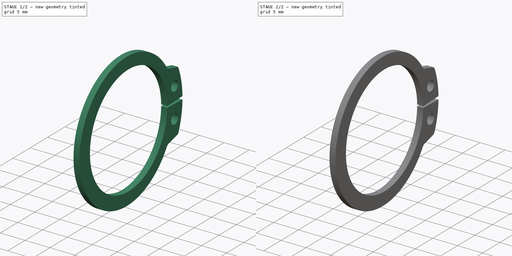
[diagram: build sequence overview — one tinted view per stage of 2, left to right]
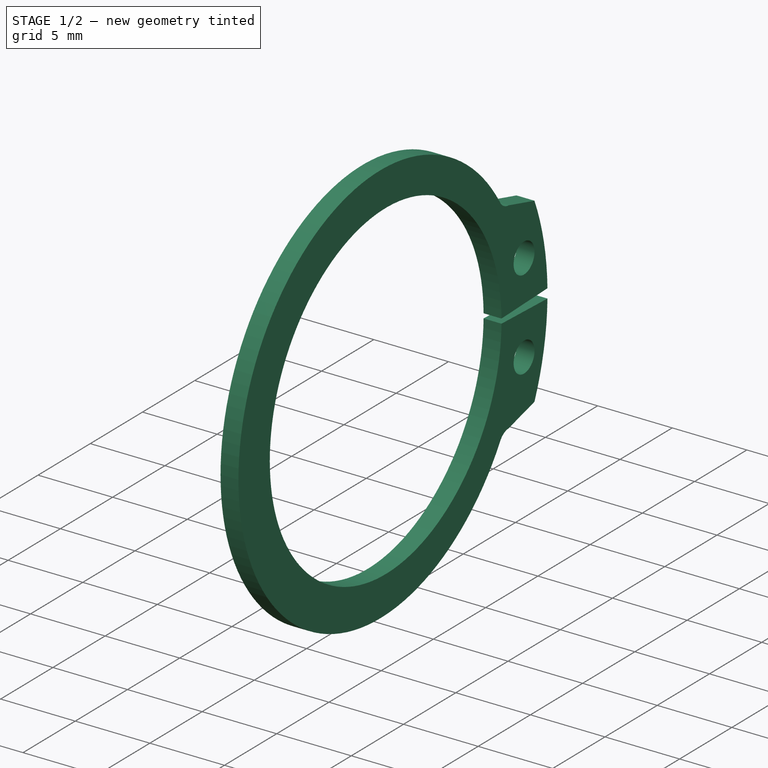
[diagram: stage 1 of 2 — iso view after this stage's code; geometry added in this stage tinted green]
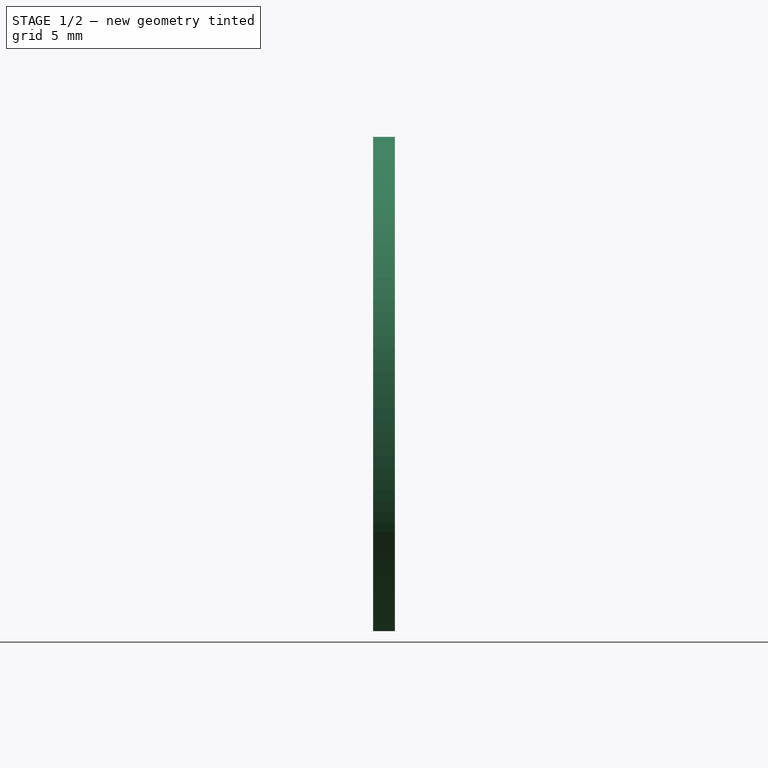
[diagram: stage 1 of 2 — front view after this stage's code; geometry added in this stage tinted green]
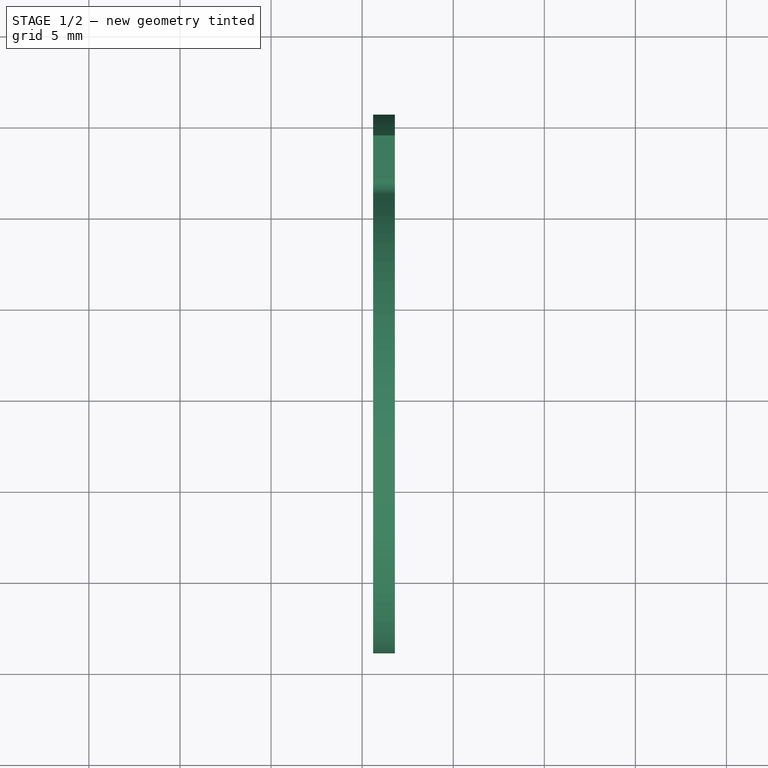
[diagram: stage 1 of 2 — top view after this stage's code; geometry added in this stage tinted green]
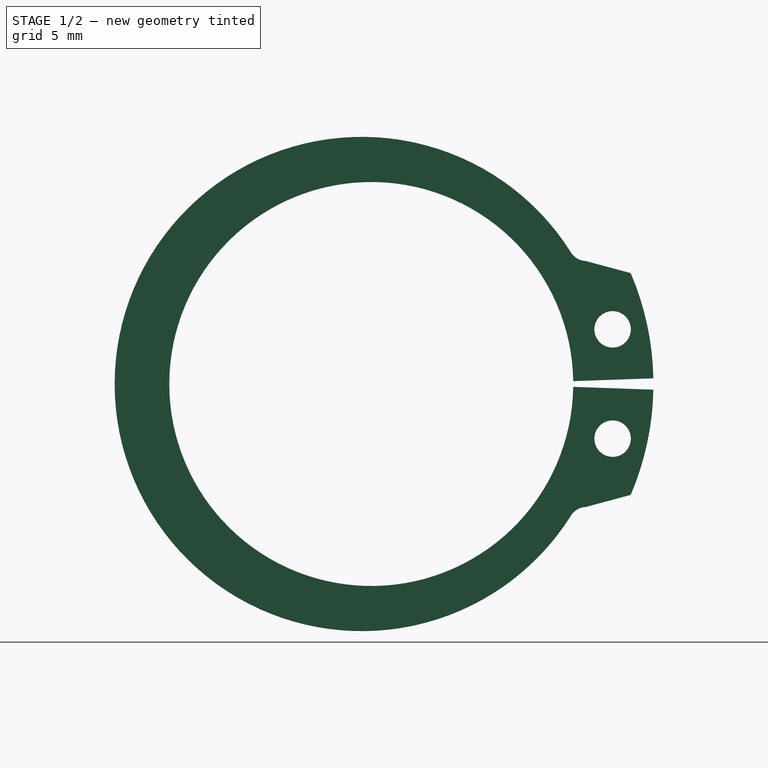
[diagram: stage 1 of 2 — right view after this stage's code; geometry added in this stage tinted green]
FCSTD DOCUMENT  (FreeCAD 0.15R4671 (Git))
Label: DIN471_CLASS_A_M24RetainingRings
License: CreativeCommons Attribution-ShareAlike
LicenseURL: http://creativecommons.org/licenses/by-sa/4.0/
objects: Sketcher::SketchObject×1, PartDesign::Pad×1, PartDesign::Mirrored×1, PartDesign::Fillet×1
note: 5 computed .brp shape members not serialized (recipe doc carries the construction recipe); baked Part::Feature solids carry a one-line shape summary decoded from their .brp

FEATURE [Sketcher::SketchObject] Sketch
  Placement = pos=(0.6,0,0) rot=(0.57735,0.57735,0.57735;2.0944rad)
  sketch-geometry (8):
    g0: Circle CenterX=13.25 CenterY=3 CenterZ=0 NormalX=0 NormalY=0 NormalZ=1 Radius=1
    g1: ArcOfCircle CenterX=0 CenterY=0 CenterZ=0 NormalX=0 NormalY=0 NormalZ=1 Radius=11.0887 StartAngle=0.0140751 EndAngle=3.14159
    g2: ArcOfCircle CenterX=0 CenterY=0 CenterZ=0 NormalX=0 NormalY=0 NormalZ=1 Radius=15.4907 StartAngle=0.0201516 EndAngle=0.403988
    g3: LineSegment StartX=11.0876 StartY=0.156069 StartZ=0 EndX=15.4876 EndY=0.312141 EndZ=0
    g4: ArcOfCircle CenterX=-0.520571 CenterY=0 CenterZ=0 NormalX=0 NormalY=0 NormalZ=1 Radius=13.5681 StartAngle=0.56552 EndAngle=3.14159
    g5: LineSegment StartX=-14.0887 StartY=0 StartZ=0 EndX=-11.0887 EndY=0 EndZ=0
    g6: LineSegment StartX=11.7665 StartY=6.7542 StartZ=0 EndX=14.2437 EndY=6.08922 EndZ=0
    g7: ArcOfCircle CenterX=11.8109 CenterY=7.75321 CenterZ=0 NormalX=0 NormalY=0 NormalZ=1 Radius=1 StartAngle=3.64532 EndAngle=4.66796
  constraints (26):
    c: Radius(g0) = 1
    c: DistanceY(g-1,g0) = 3
    c: DistanceX(g-1,g0) = 13.25
    c: Coincident(g1,g-1)
    c: PointOnObject(g1,g-1)
    c: Coincident(g2,g-1)
    c: Coincident(g3,g1)
    c: Coincident(g3,g2)
    c: DistanceX(g3) = 4.4
    c: Radius(g2) = 15.4907
    c: DistanceY(g-1,g1) = 0.156069
    c: DistanceY(g-1,g2) = 0.312141
    c: PointOnObject(g4,g-1)
    c: PointOnObject(g4,g-1)
    c: Coincident(g5,g4)
    c: Coincident(g5,g1)
    c: DistanceX(g5) = 3
    c: Coincident(g6,g2)
    c: Coincident(g7,g4)
    c: Coincident(g7,g6)
    c: Radius(g7) = 1
    c: DistanceX(g6) = 2.47723
    c: DistanceY(g-1,g2) = 6.08922
    c: DistanceX(g-1,g4) = 10.9351
    c: DistanceY(g-1,g4) = 7.27052
    c: DistanceY(g-1,g6) = 6.7542
FEATURE [PartDesign::Pad] Pad
  Length = 1.2
  Length2 = 100
  Placement = pos=(0.6,0,0) rot=(0.57735,0.57735,0.57735;2.0944rad)
  Sketch = -> Sketch
  Type = 0
FEATURE [PartDesign::Mirrored] Mirrored
  MirrorPlane = -> Sketch [H_Axis]
  Originals = -> [Pad]
  Placement = pos=(0.6,0,0) rot=(0.57735,0.57735,0.57735;2.0944rad)
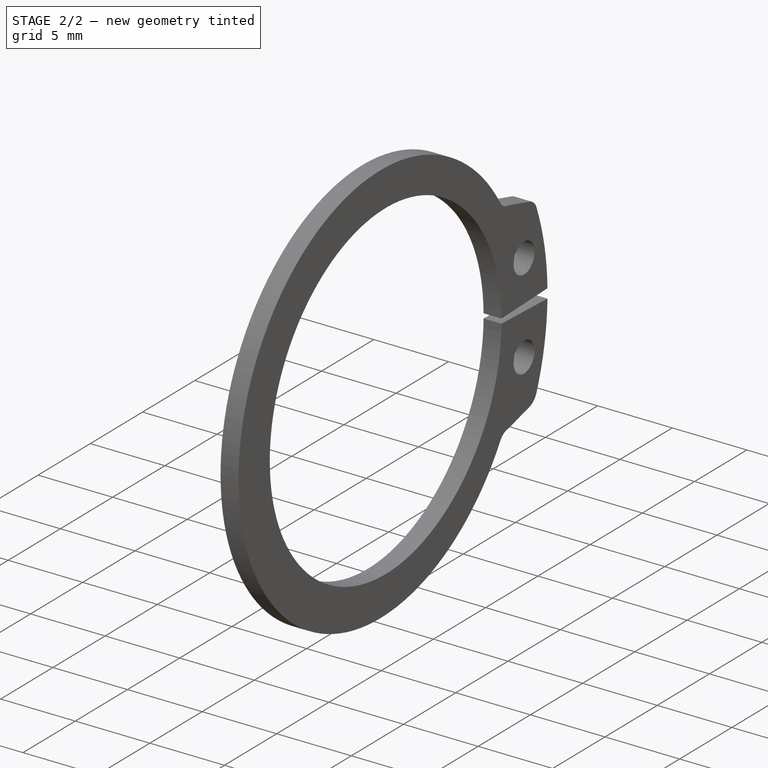
[diagram: stage 2 of 2 — iso view after this stage's code; geometry added in this stage tinted green]
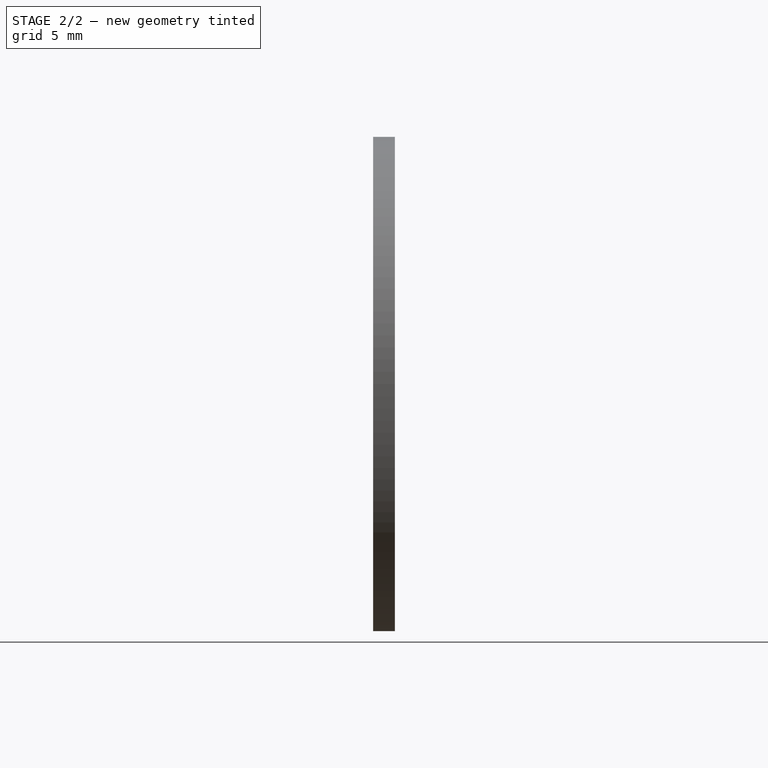
[diagram: stage 2 of 2 — front view after this stage's code; geometry added in this stage tinted green]
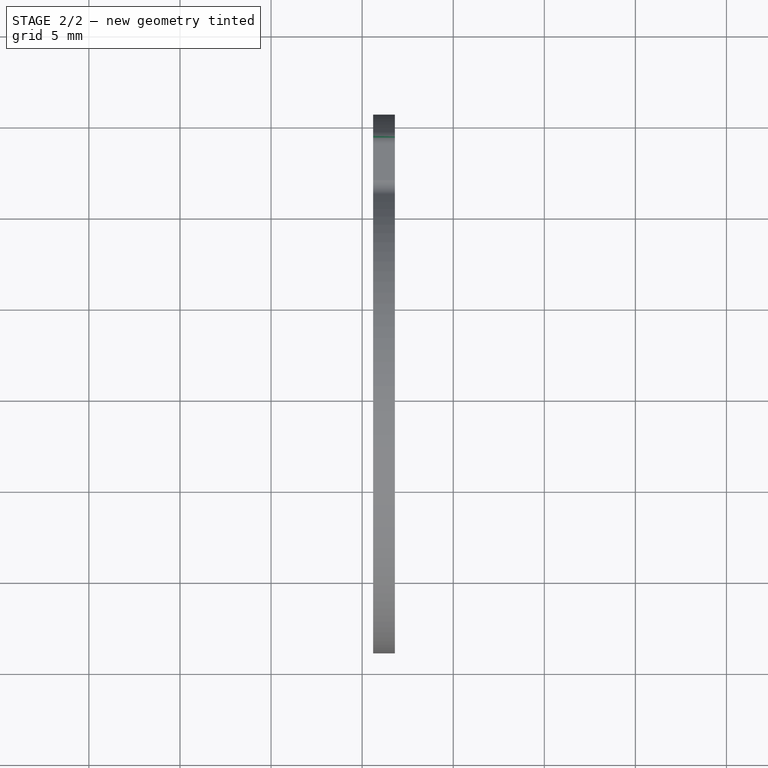
[diagram: stage 2 of 2 — top view after this stage's code; geometry added in this stage tinted green]
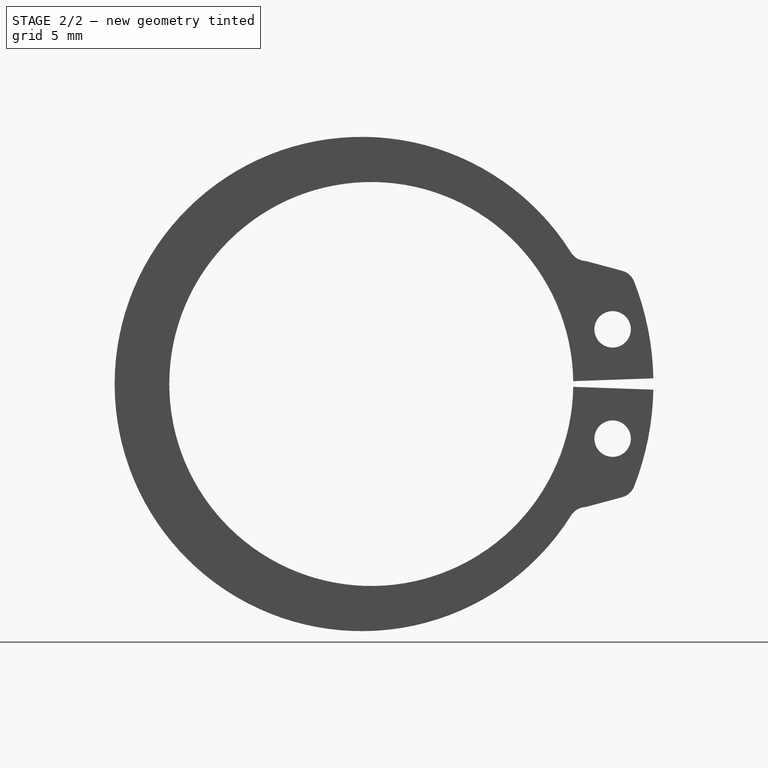
[diagram: stage 2 of 2 — right view after this stage's code; geometry added in this stage tinted green]
FEATURE [PartDesign::Fillet] Fillet
  Base = -> Mirrored [Edge5,Edge27]
  Placement = pos=(0.6,0,0) rot=(0.57735,0.57735,0.57735;2.0944rad)
  Radius = 1
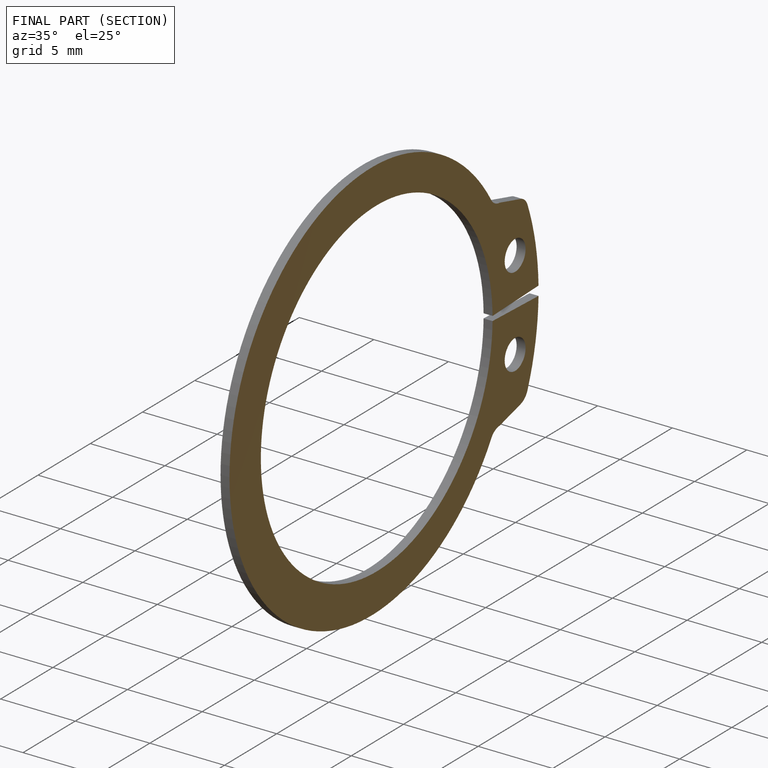
[diagram: finished part — half-section view (interior)]
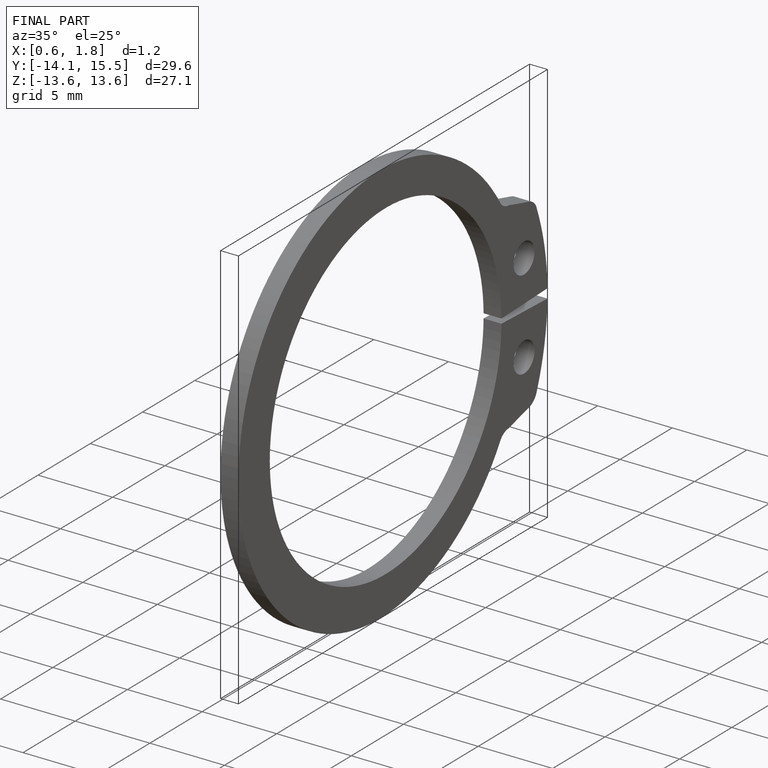
[diagram: finished part — iso view with bounding-box wireframe]
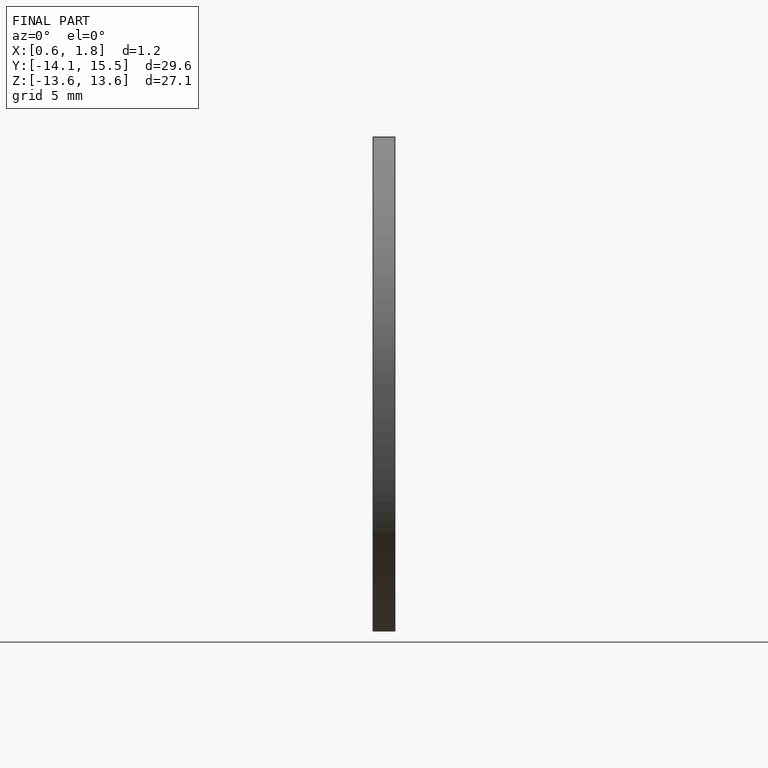
[diagram: finished part — front view with bounding-box wireframe]
